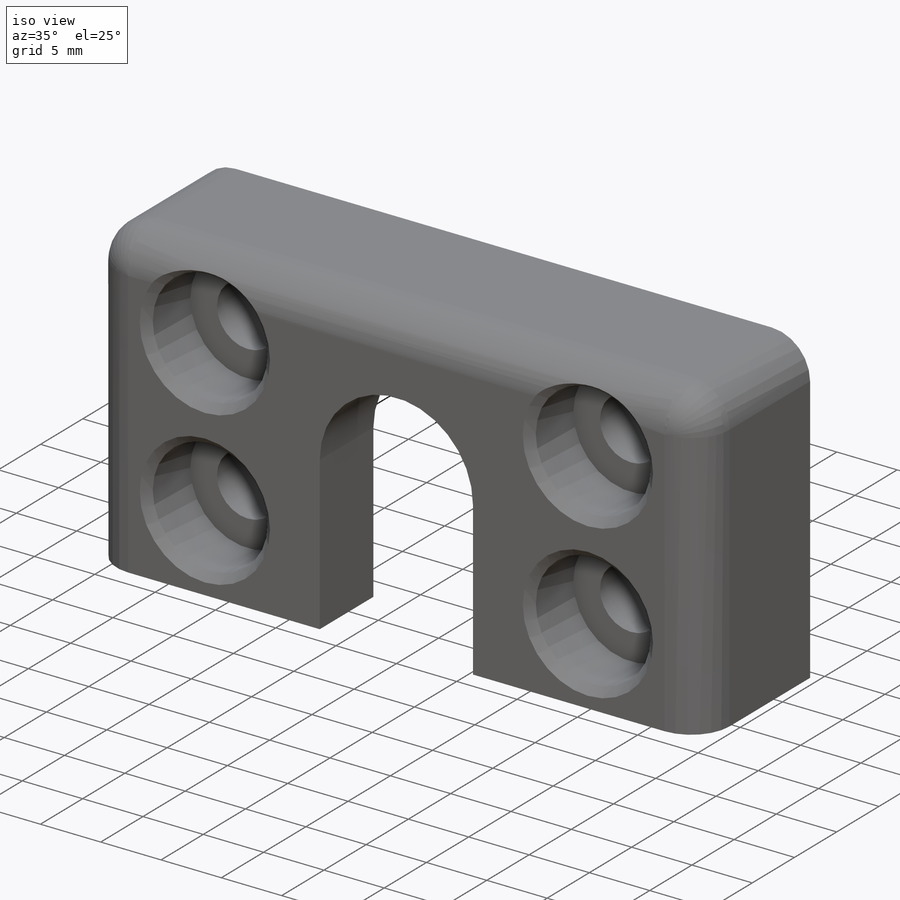
[diagram: iso view]
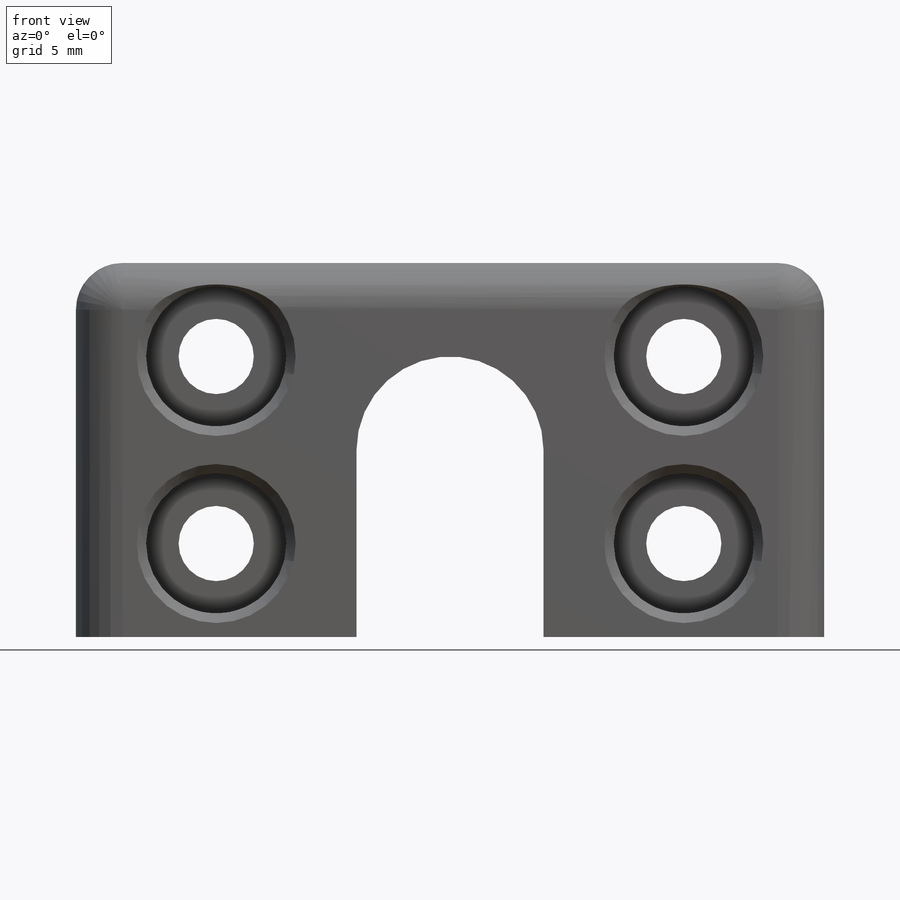
[diagram: front view]
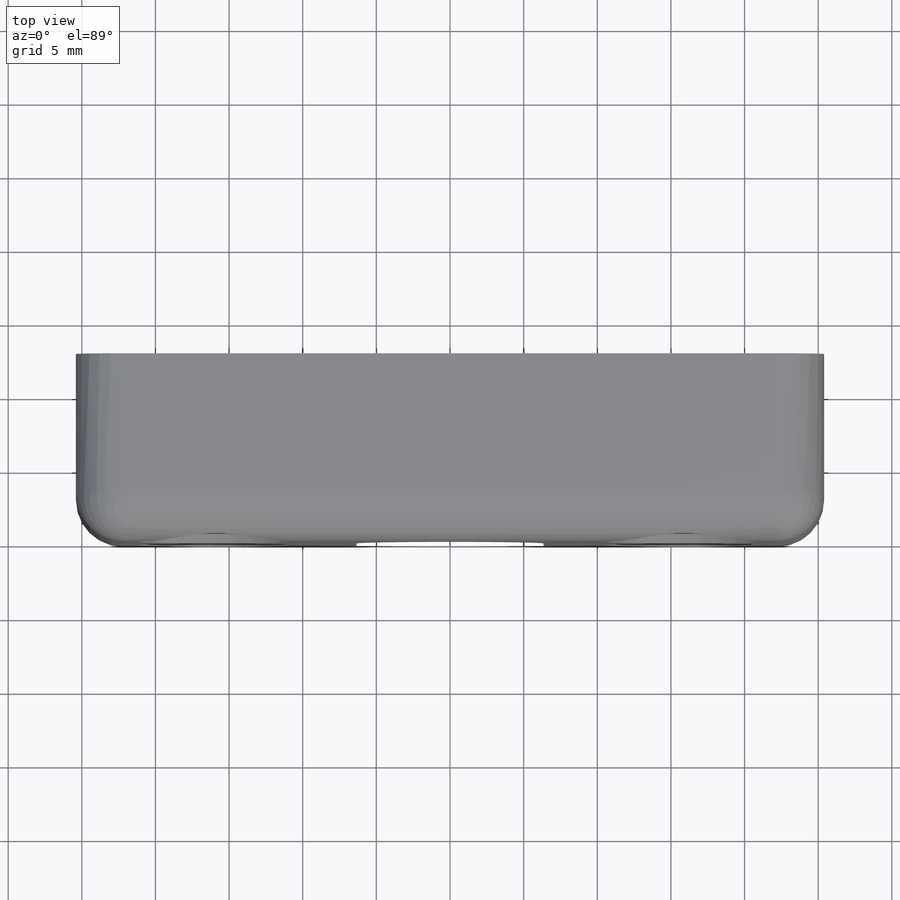
[diagram: top view]
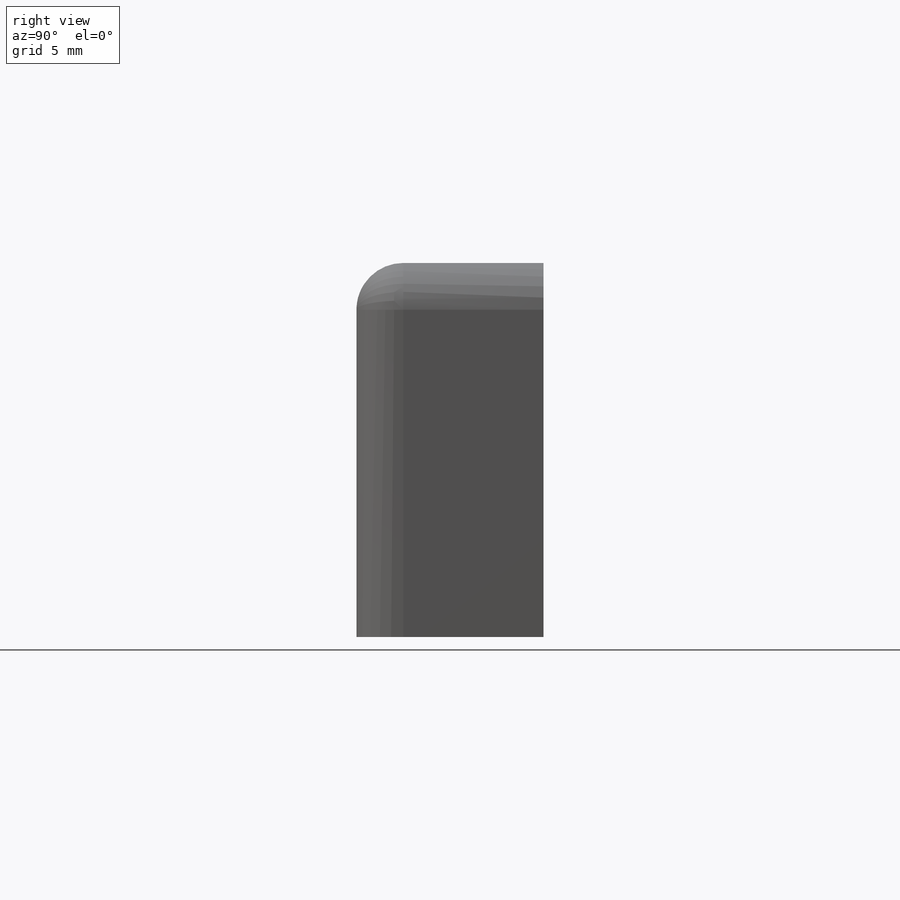
[diagram: right view]
SOLIDWORKS PART (.sldprt)
format: sldprt  version: not decoded by parser v0  size: 343,040 bytes
history: native  units: mm
features: sketch x5, cut_extrude x2, material x1, extrude x1, hole x1, fillet x1 (+13 scaffold rows collapsed)
feature tree (24):
  scaffold x13  (default folders/planes/origin — collapsed)
  material  "Material <not specified>"
  sketch  "Sketch1"  dims[D1=50.8mm D2=25.4mm]
  extrude  "Boss-Extrude1"  Depth=12.7mm
  hole  "CBORE for #10 Socket Head Cap Screw1"  Diameter=5.1054mm Depth=12.7mm
  sketch  "Sketch3"  dims[D1=15.875mm D2=6.35mm]
  sketch  "Sketch2"  dims[hole-wizard template sketch: 43 standard entries collapsed; hole parameters kept: c12.C'Bore Dia.=9.525mm c12.C'Bore Depth=5.08mm c12.Near C'Sink Dia.=10.795mm c12.D6=~4.399409mm c12.Near C'Sink Angle=90.0deg]
  sketch  "Sketch4"  dims[D1=6.35mm]
  cut_extrude  "Cut-Extrude1"  [1 undecoded]
  sketch  "Sketch5"  dims[D1=11.1125mm]
  cut_extrude  "Cut-Extrude2"  Depth=6.35mm
  fillet  "Fillet1"  Radius=3.175mm
decode coverage: 9 of 10 modeling features carry decoded parameters
note: ~ marks probable driven/reference dimensions
note: 1 parameter value undecoded
note: suppression state not decoded; provenance and decode notes live in map.json
